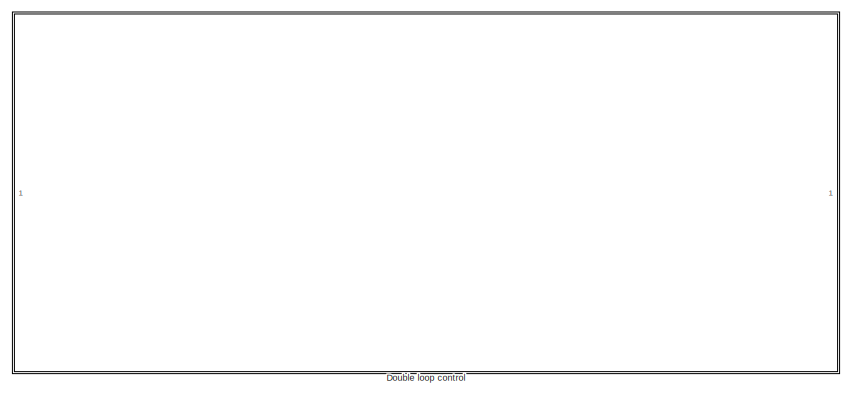
[diagram: root canvas - part 1/2, left side, full height]
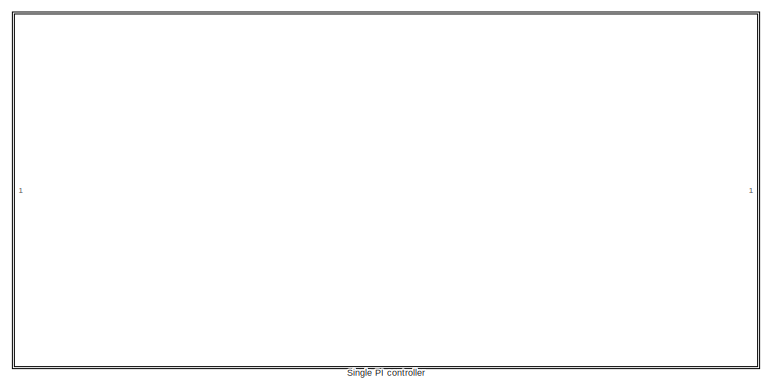
[diagram: root canvas - part 2/2, right side, full height]
MODEL slx_eeb159517b94
KIND model
CONFIG AbsTol = 1e-3
CONFIG EnableMultiTasking = on
CONFIG FixedStep = auto
CONFIG MaxStep = auto
CONFIG MinStep = auto
CONFIG RelTol = 1e-3
CONFIG SampleTimeConstraint = Unconstrained
CONFIG SolverName = VariableStepAuto
CONFIG StartTime = 0.0
CONFIG StopTime = 50
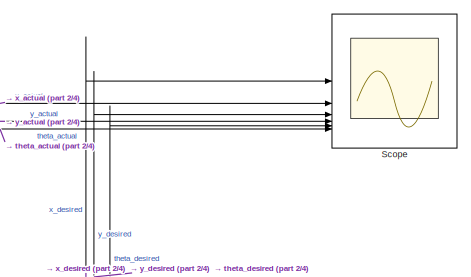
[diagram: Double loop control - part 1/4, top center region]
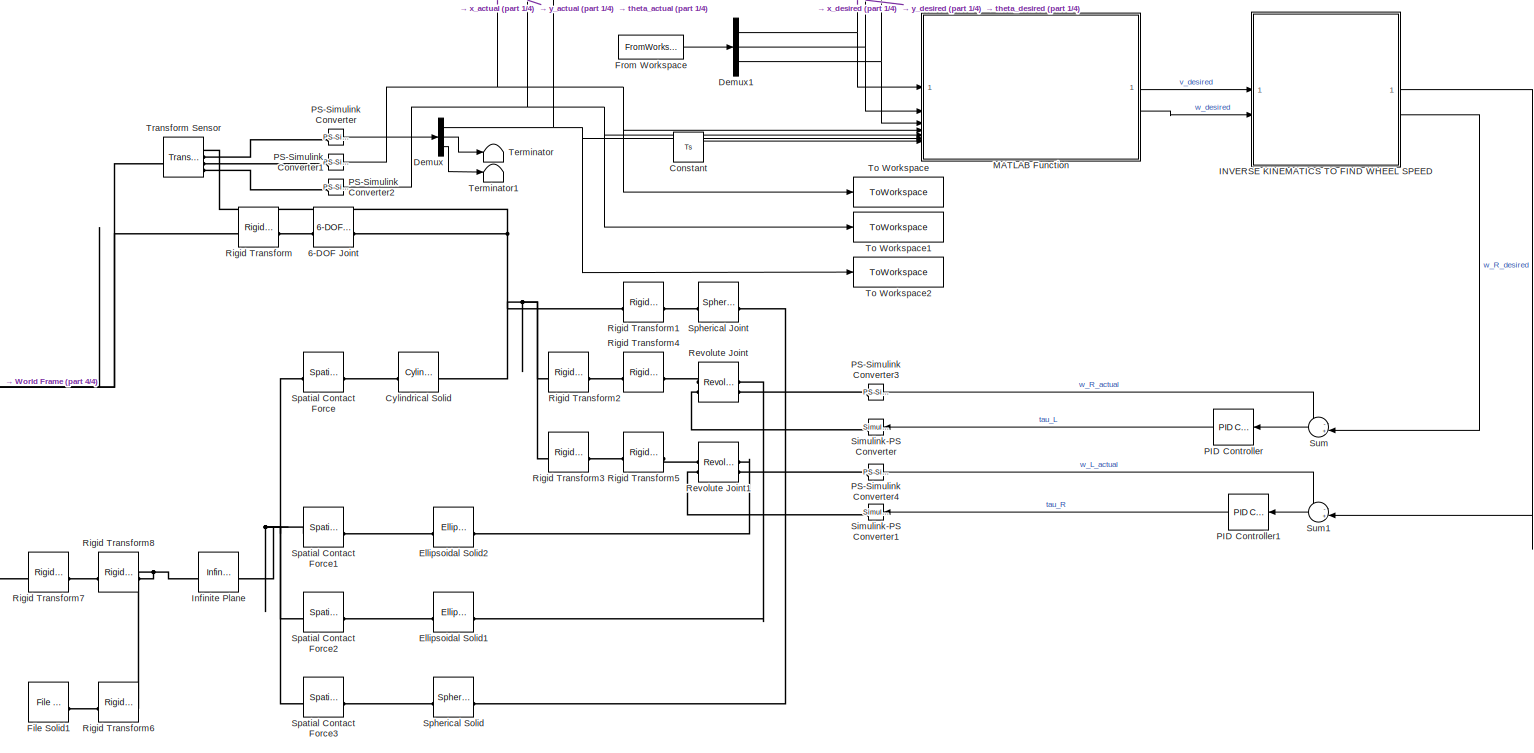
[diagram: Double loop control - part 2/4, full width, middle band]
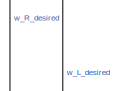
[diagram: Double loop control - part 3/4, middle right region]
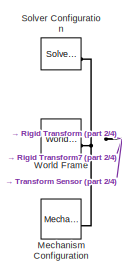
[diagram: Double loop control - part 4/4, bottom left region]
BLOCK [SubSystem] Double loop control
BLOCK [Reference] Double loop control/6-DOF Joint  REF=sm_lib/Joints/6-DOF Joint
  SourceBlock = sm_lib/Joints/6-DOF Joint
  SourceType = 6-DOF Joint
BLOCK [Constant] Double loop control/Constant
  Value = Ts
BLOCK [Reference] Double loop control/Cylindrical Solid  REF=sm_lib/Body Elements/Cylindrical Solid
  SourceBlock = sm_lib/Body Elements/Cylindrical Solid
  SourceType = Cylindrical Solid
BLOCK [Demux] Double loop control/Demux
  Outputs = 3
BLOCK [Demux] Double loop control/Demux1
  Outputs = 3
BLOCK [Reference] Double loop control/Ellipsoidal Solid1  REF=sm_lib/Body Elements/Ellipsoidal Solid
  SourceBlock = sm_lib/Body Elements/Ellipsoidal Solid
  SourceType = Ellipsoidal Solid
BLOCK [Reference] Double loop control/Ellipsoidal Solid2  REF=sm_lib/Body Elements/Ellipsoidal Solid
  SourceBlock = sm_lib/Body Elements/Ellipsoidal Solid
  SourceType = Ellipsoidal Solid
BLOCK [Reference] Double loop control/File Solid1  REF=sm_lib/Body Elements/File Solid
  SourceBlock = sm_lib/Body Elements/File Solid
  SourceType = File Solid
BLOCK [FromWorkspace] Double loop control/From Workspace
  VariableName = simulink_path_data
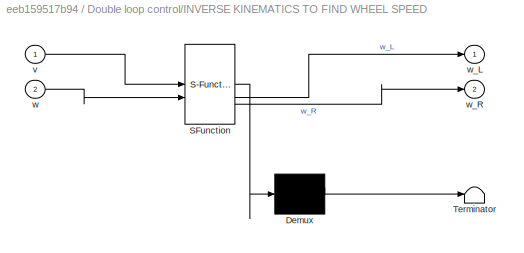
BLOCK [SubSystem] Double loop control/INVERSE KINEMATICS TO FIND WHEEL SPEED
  ErrorFcn = Stateflow.Translate.translate
  PermitHierarchicalResolution = ExplicitOnly
  SFBlockType = MATLAB Function
  TreatAsAtomicUnit = on
BLOCK [Demux] Double loop control/INVERSE KINEMATICS TO FIND WHEEL SPEED/ Demux 
  Outputs = 1
BLOCK [S-Function] Double loop control/INVERSE KINEMATICS TO FIND WHEEL SPEED/ SFunction 
  EnableBusSupport = on
  FunctionName = sf_sfun
  PortCounts = [2 3]
  SFcnIsStateOwnerBlock = off
  SFunctionDeploymentMode = off
  Tag = Stateflow S-Function 2
BLOCK [Terminator] Double loop control/INVERSE KINEMATICS TO FIND WHEEL SPEED/ Terminator 
BLOCK [Inport] Double loop control/INVERSE KINEMATICS TO FIND WHEEL SPEED/v
BLOCK [Inport] Double loop control/INVERSE KINEMATICS TO FIND WHEEL SPEED/w
  Port = 2
BLOCK [Outport] Double loop control/INVERSE KINEMATICS TO FIND WHEEL SPEED/w_L
BLOCK [Outport] Double loop control/INVERSE KINEMATICS TO FIND WHEEL SPEED/w_R
  Port = 2
BLOCK [Reference] Double loop control/Infinite Plane  REF=sm_lib/Curves and Surfaces/Infinite Plane
  SourceBlock = sm_lib/Curves and Surfaces/Infinite Plane
  SourceType = Infinite Plane
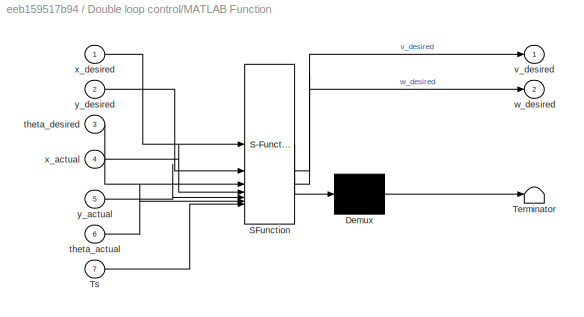
BLOCK [SubSystem] Double loop control/MATLAB Function
  ErrorFcn = Stateflow.Translate.translate
  PermitHierarchicalResolution = ExplicitOnly
  SFBlockType = MATLAB Function
  SystemSampleTime = Ts
  TreatAsAtomicUnit = on
BLOCK [Demux] Double loop control/MATLAB Function/ Demux 
  Outputs = 1
BLOCK [S-Function] Double loop control/MATLAB Function/ SFunction 
  EnableBusSupport = on
  FunctionName = sf_sfun
  PortCounts = [7 3]
  SFcnIsStateOwnerBlock = off
  SFunctionDeploymentMode = off
  Tag = Stateflow S-Function 1
BLOCK [Terminator] Double loop control/MATLAB Function/ Terminator 
BLOCK [Inport] Double loop control/MATLAB Function/Ts
  Port = 7
BLOCK [Inport] Double loop control/MATLAB Function/theta_actual
  Port = 6
BLOCK [Inport] Double loop control/MATLAB Function/theta_desired
  Port = 3
BLOCK [Outport] Double loop control/MATLAB Function/v_desired
BLOCK [Outport] Double loop control/MATLAB Function/w_desired
  Port = 2
BLOCK [Inport] Double loop control/MATLAB Function/x_actual
  Port = 4
BLOCK [Inport] Double loop control/MATLAB Function/x_desired
BLOCK [Inport] Double loop control/MATLAB Function/y_actual
  Port = 5
BLOCK [Inport] Double loop control/MATLAB Function/y_desired
  Port = 2
BLOCK [Reference] Double loop control/Mechanism Configuration  REF=sm_lib/Utilities/Mechanism
Configuration
  SourceBlock = sm_lib/Utilities/Mechanism\nConfiguration
  SourceType = Mechanism\nConfiguration
BLOCK [Reference] Double loop control/PID Controller  REF=slpidlib/PID Controller
  LibrarySourceBlock = simulink/Continuous/PID Controller
  NameLocation = top
  SourceBlock = slpidlib/PID Controller
  SourceType = PID 1dof
BLOCK [Reference] Double loop control/PID Controller1  REF=slpidlib/PID Controller
  LibrarySourceBlock = simulink/Continuous/PID Controller
  NameLocation = top
  SourceBlock = slpidlib/PID Controller
  SourceType = PID 1dof
BLOCK [Reference] Double loop control/PS-Simulink Converter  REF=nesl_utility/PS-Simulink
Converter
  SourceBlock = nesl_utility/PS-Simulink\nConverter
  SourceType = PS-Simulink\nConverter
BLOCK [Reference] Double loop control/PS-Simulink Converter1  REF=nesl_utility/PS-Simulink
Converter
  SourceBlock = nesl_utility/PS-Simulink\nConverter
  SourceType = PS-Simulink\nConverter
BLOCK [Reference] Double loop control/PS-Simulink Converter2  REF=nesl_utility/PS-Simulink
Converter
  SourceBlock = nesl_utility/PS-Simulink\nConverter
  SourceType = PS-Simulink\nConverter
BLOCK [Reference] Double loop control/PS-Simulink Converter3  REF=nesl_utility/PS-Simulink
Converter
  SourceBlock = nesl_utility/PS-Simulink\nConverter
  SourceType = PS-Simulink\nConverter
BLOCK [Reference] Double loop control/PS-Simulink Converter4  REF=nesl_utility/PS-Simulink
Converter
  SourceBlock = nesl_utility/PS-Simulink\nConverter
  SourceType = PS-Simulink\nConverter
BLOCK [Reference] Double loop control/Revolute Joint  REF=sm_lib/Joints/Revolute Joint
  SourceBlock = sm_lib/Joints/Revolute Joint
  SourceType = Revolute Joint
BLOCK [Reference] Double loop control/Revolute Joint1  REF=sm_lib/Joints/Revolute Joint
  SourceBlock = sm_lib/Joints/Revolute Joint
  SourceType = Revolute Joint
BLOCK [Reference] Double loop control/Rigid Transform  REF=sm_lib/Frames and
Transforms/Rigid
Transform
  SourceBlock = sm_lib/Frames and\nTransforms/Rigid\nTransform
  SourceType = Rigid\nTransform
BLOCK [Reference] Double loop control/Rigid Transform1  REF=sm_lib/Frames and
Transforms/Rigid
Transform
  SourceBlock = sm_lib/Frames and\nTransforms/Rigid\nTransform
  SourceType = Rigid\nTransform
BLOCK [Reference] Double loop control/Rigid Transform2  REF=sm_lib/Frames and
Transforms/Rigid
Transform
  SourceBlock = sm_lib/Frames and\nTransforms/Rigid\nTransform
  SourceType = Rigid\nTransform
BLOCK [Reference] Double loop control/Rigid Transform3  REF=sm_lib/Frames and
Transforms/Rigid
Transform
  SourceBlock = sm_lib/Frames and\nTransforms/Rigid\nTransform
  SourceType = Rigid\nTransform
BLOCK [Reference] Double loop control/Rigid Transform4  REF=sm_lib/Frames and
Transforms/Rigid
Transform
  SourceBlock = sm_lib/Frames and\nTransforms/Rigid\nTransform
  SourceType = Rigid\nTransform
BLOCK [Reference] Double loop control/Rigid Transform5  REF=sm_lib/Frames and
Transforms/Rigid
Transform
  SourceBlock = sm_lib/Frames and\nTransforms/Rigid\nTransform
  SourceType = Rigid\nTransform
BLOCK [Reference] Double loop control/Rigid Transform6  REF=sm_lib/Frames and
Transforms/Rigid
Transform
  SourceBlock = sm_lib/Frames and\nTransforms/Rigid\nTransform
  SourceType = Rigid\nTransform
BLOCK [Reference] Double loop control/Rigid Transform7  REF=sm_lib/Frames and
Transforms/Rigid
Transform
  SourceBlock = sm_lib/Frames and\nTransforms/Rigid\nTransform
  SourceType = Rigid\nTransform
BLOCK [Reference] Double loop control/Rigid Transform8  REF=sm_lib/Frames and
Transforms/Rigid
Transform
  SourceBlock = sm_lib/Frames and\nTransforms/Rigid\nTransform
  SourceType = Rigid\nTransform
BLOCK [Scope] Double loop control/Scope
  Floating = off
  NumInputPorts = 6
  ScopeSpecificationString = Simulink.scopes.TimeScopeBlockCfg('CurrentConfiguration', extmgr.ConfigurationSet(extmgr.Configuration('Core','General UI',true),extmgr.Configuration('Core','Source UI',true),extmgr.Configuration('Sources','WiredSimulink',true),extmgr.Configuration('Visuals','Time Domain',true,'SerializedDisplays',{struct('MinYLimReal','15.39043','MaxYLimReal','31.76354','YLabelReal','','MinYLimMag','15.39043','Ma...<+5325ch>
BLOCK [Reference] Double loop control/Simulink-PS Converter  REF=nesl_utility/Simulink-PS
Converter
  SourceBlock = nesl_utility/Simulink-PS\nConverter
  SourceType = Simulink-PS\nConverter
BLOCK [Reference] Double loop control/Simulink-PS Converter1  REF=nesl_utility/Simulink-PS
Converter
  SourceBlock = nesl_utility/Simulink-PS\nConverter
  SourceType = Simulink-PS\nConverter
BLOCK [Reference] Double loop control/Solver Configuration  REF=nesl_utility/Solver
Configuration
  SourceBlock = nesl_utility/Solver\nConfiguration
  SourceType = Solver\nConfiguration
BLOCK [Reference] Double loop control/Spatial Contact Force  REF=sm_lib/Forces and
Torques/Spatial
Contact Force
  SourceBlock = sm_lib/Forces and\nTorques/Spatial\nContact Force
  SourceType = Spatial\nContact Force
BLOCK [Reference] Double loop control/Spatial Contact Force1  REF=sm_lib/Forces and
Torques/Spatial
Contact Force
  SourceBlock = sm_lib/Forces and\nTorques/Spatial\nContact Force
  SourceType = Spatial\nContact Force
BLOCK [Reference] Double loop control/Spatial Contact Force2  REF=sm_lib/Forces and
Torques/Spatial
Contact Force
  SourceBlock = sm_lib/Forces and\nTorques/Spatial\nContact Force
  SourceType = Spatial\nContact Force
BLOCK [Reference] Double loop control/Spatial Contact Force3  REF=sm_lib/Forces and
Torques/Spatial
Contact Force
  SourceBlock = sm_lib/Forces and\nTorques/Spatial\nContact Force
  SourceType = Spatial\nContact Force
BLOCK [Reference] Double loop control/Spherical Joint  REF=sm_lib/Joints/Spherical
Joint
  SourceBlock = sm_lib/Joints/Spherical\nJoint
  SourceType = Spherical\nJoint
BLOCK [Reference] Double loop control/Spherical Solid  REF=sm_lib/Body Elements/Spherical Solid
  SourceBlock = sm_lib/Body Elements/Spherical Solid
  SourceType = Spherical Solid
BLOCK [Sum] Double loop control/Sum
  Inputs = -+|
  NameLocation = top
BLOCK [Sum] Double loop control/Sum1
  Inputs = -+|
  NameLocation = top
BLOCK [Terminator] Double loop control/Terminator
BLOCK [Terminator] Double loop control/Terminator1
BLOCK [ToWorkspace] Double loop control/To Workspace
  FixptAsFi = on
  MaxDataPoints = inf
  SampleTime = -1
  SaveFormat = Timeseries
  VariableName = x_actual
BLOCK [ToWorkspace] Double loop control/To Workspace1
  FixptAsFi = on
  MaxDataPoints = inf
  SampleTime = -1
  SaveFormat = Timeseries
  VariableName = y_actual
BLOCK [ToWorkspace] Double loop control/To Workspace2
  FixptAsFi = on
  MaxDataPoints = inf
  SampleTime = -1
  SaveFormat = Timeseries
  VariableName = theta_actual
BLOCK [Reference] Double loop control/Transform Sensor  REF=sm_lib/Frames and
Transforms/Transform
Sensor
  SourceBlock = sm_lib/Frames and\nTransforms/Transform\nSensor
  SourceType = Transform\nSensor
BLOCK [Reference] Double loop control/World Frame  REF=sm_lib/Frames and
Transforms/World Frame
  SourceBlock = sm_lib/Frames and\nTransforms/World Frame
  SourceType = World Frame
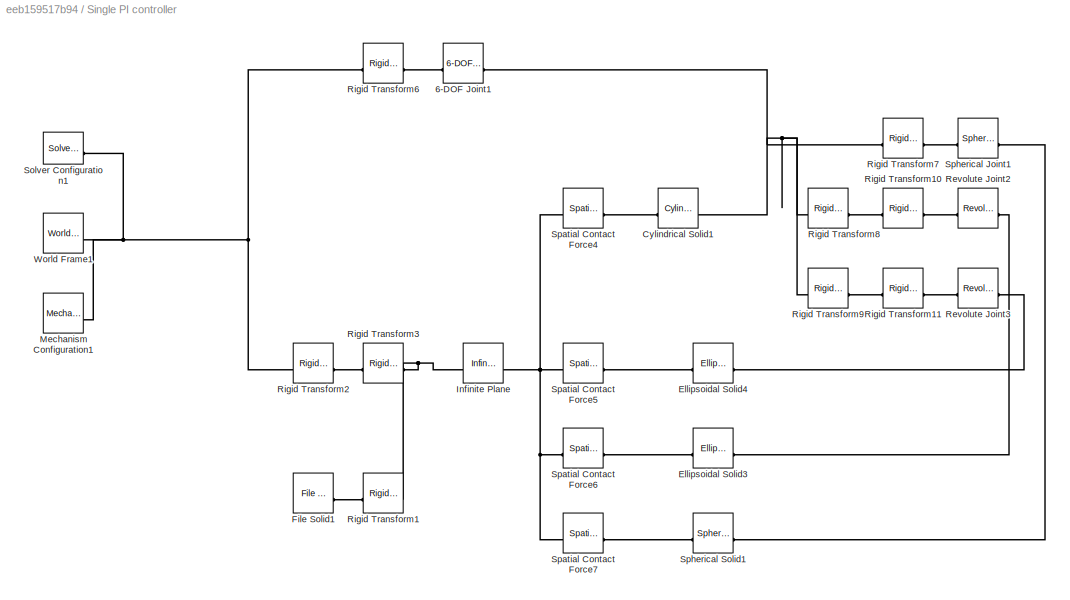
BLOCK [SubSystem] Single PI controller
  Commented = on
BLOCK [Reference] Single PI controller/6-DOF Joint1  REF=sm_lib/Joints/6-DOF Joint
  SourceBlock = sm_lib/Joints/6-DOF Joint
  SourceType = 6-DOF Joint
BLOCK [Reference] Single PI controller/Cylindrical Solid1  REF=sm_lib/Body Elements/Cylindrical Solid
  SourceBlock = sm_lib/Body Elements/Cylindrical Solid
  SourceType = Cylindrical Solid
BLOCK [Reference] Single PI controller/Ellipsoidal Solid3  REF=sm_lib/Body Elements/Ellipsoidal Solid
  SourceBlock = sm_lib/Body Elements/Ellipsoidal Solid
  SourceType = Ellipsoidal Solid
BLOCK [Reference] Single PI controller/Ellipsoidal Solid4  REF=sm_lib/Body Elements/Ellipsoidal Solid
  SourceBlock = sm_lib/Body Elements/Ellipsoidal Solid
  SourceType = Ellipsoidal Solid
BLOCK [Reference] Single PI controller/File Solid1  REF=sm_lib/Body Elements/File Solid
  SourceBlock = sm_lib/Body Elements/File Solid
  SourceType = File Solid
BLOCK [Reference] Single PI controller/Infinite Plane  REF=sm_lib/Curves and Surfaces/Infinite Plane
  SourceBlock = sm_lib/Curves and Surfaces/Infinite Plane
  SourceType = Infinite Plane
BLOCK [Reference] Single PI controller/Mechanism Configuration1  REF=sm_lib/Utilities/Mechanism
Configuration
  SourceBlock = sm_lib/Utilities/Mechanism\nConfiguration
  SourceType = Mechanism\nConfiguration
BLOCK [Reference] Single PI controller/Revolute Joint2  REF=sm_lib/Joints/Revolute Joint
  SourceBlock = sm_lib/Joints/Revolute Joint
  SourceType = Revolute Joint
BLOCK [Reference] Single PI controller/Revolute Joint3  REF=sm_lib/Joints/Revolute Joint
  SourceBlock = sm_lib/Joints/Revolute Joint
  SourceType = Revolute Joint
BLOCK [Reference] Single PI controller/Rigid Transform1  REF=sm_lib/Frames and
Transforms/Rigid
Transform
  SourceBlock = sm_lib/Frames and\nTransforms/Rigid\nTransform
  SourceType = Rigid\nTransform
BLOCK [Reference] Single PI controller/Rigid Transform10  REF=sm_lib/Frames and
Transforms/Rigid
Transform
  SourceBlock = sm_lib/Frames and\nTransforms/Rigid\nTransform
  SourceType = Rigid\nTransform
BLOCK [Reference] Single PI controller/Rigid Transform11  REF=sm_lib/Frames and
Transforms/Rigid
Transform
  SourceBlock = sm_lib/Frames and\nTransforms/Rigid\nTransform
  SourceType = Rigid\nTransform
BLOCK [Reference] Single PI controller/Rigid Transform2  REF=sm_lib/Frames and
Transforms/Rigid
Transform
  SourceBlock = sm_lib/Frames and\nTransforms/Rigid\nTransform
  SourceType = Rigid\nTransform
BLOCK [Reference] Single PI controller/Rigid Transform3  REF=sm_lib/Frames and
Transforms/Rigid
Transform
  SourceBlock = sm_lib/Frames and\nTransforms/Rigid\nTransform
  SourceType = Rigid\nTransform
BLOCK [Reference] Single PI controller/Rigid Transform6  REF=sm_lib/Frames and
Transforms/Rigid
Transform
  SourceBlock = sm_lib/Frames and\nTransforms/Rigid\nTransform
  SourceType = Rigid\nTransform
BLOCK [Reference] Single PI controller/Rigid Transform7  REF=sm_lib/Frames and
Transforms/Rigid
Transform
  SourceBlock = sm_lib/Frames and\nTransforms/Rigid\nTransform
  SourceType = Rigid\nTransform
BLOCK [Reference] Single PI controller/Rigid Transform8  REF=sm_lib/Frames and
Transforms/Rigid
Transform
  SourceBlock = sm_lib/Frames and\nTransforms/Rigid\nTransform
  SourceType = Rigid\nTransform
BLOCK [Reference] Single PI controller/Rigid Transform9  REF=sm_lib/Frames and
Transforms/Rigid
Transform
  SourceBlock = sm_lib/Frames and\nTransforms/Rigid\nTransform
  SourceType = Rigid\nTransform
BLOCK [Reference] Single PI controller/Solver Configuration1  REF=nesl_utility/Solver
Configuration
  SourceBlock = nesl_utility/Solver\nConfiguration
  SourceType = Solver\nConfiguration
BLOCK [Reference] Single PI controller/Spatial Contact Force4  REF=sm_lib/Forces and
Torques/Spatial
Contact Force
  SourceBlock = sm_lib/Forces and\nTorques/Spatial\nContact Force
  SourceType = Spatial\nContact Force
BLOCK [Reference] Single PI controller/Spatial Contact Force5  REF=sm_lib/Forces and
Torques/Spatial
Contact Force
  SourceBlock = sm_lib/Forces and\nTorques/Spatial\nContact Force
  SourceType = Spatial\nContact Force
BLOCK [Reference] Single PI controller/Spatial Contact Force6  REF=sm_lib/Forces and
Torques/Spatial
Contact Force
  SourceBlock = sm_lib/Forces and\nTorques/Spatial\nContact Force
  SourceType = Spatial\nContact Force
BLOCK [Reference] Single PI controller/Spatial Contact Force7  REF=sm_lib/Forces and
Torques/Spatial
Contact Force
  SourceBlock = sm_lib/Forces and\nTorques/Spatial\nContact Force
  SourceType = Spatial\nContact Force
BLOCK [Reference] Single PI controller/Spherical Joint1  REF=sm_lib/Joints/Spherical
Joint
  SourceBlock = sm_lib/Joints/Spherical\nJoint
  SourceType = Spherical\nJoint
BLOCK [Reference] Single PI controller/Spherical Solid1  REF=sm_lib/Body Elements/Spherical Solid
  SourceBlock = sm_lib/Body Elements/Spherical Solid
  SourceType = Spherical Solid
BLOCK [Reference] Single PI controller/World Frame1  REF=sm_lib/Frames and
Transforms/World Frame
  SourceBlock = sm_lib/Frames and\nTransforms/World Frame
  SourceType = World Frame
LINE Double loop control/Constant:1 -> Double loop control/MATLAB Function:7
NET Double loop control/Demux1:1 -> Double loop control/MATLAB Function:1, Double loop control/Scope:1
NET Double loop control/Demux1:2 -> Double loop control/MATLAB Function:2, Double loop control/Scope:3
NET Double loop control/Demux1:3 -> Double loop control/MATLAB Function:3, Double loop control/Scope:5
NET Double loop control/Demux:1 -> Double loop control/MATLAB Function:6, Double loop control/Scope:6, Double loop control/To Workspace2:1
LINE Double loop control/Demux:2 -> Double loop control/Terminator:1
LINE Double loop control/Demux:3 -> Double loop control/Terminator1:1
LINE Double loop control/From Workspace:1 -> Double loop control/Demux1:1
LINE Double loop control/INVERSE KINEMATICS TO FIND WHEEL SPEED:1 -> Double loop control/Sum1:2
LINE Double loop control/INVERSE KINEMATICS TO FIND WHEEL SPEED:2 -> Double loop control/Sum:2
LINE Double loop control/MATLAB Function:1 -> Double loop control/INVERSE KINEMATICS TO FIND WHEEL SPEED:1
LINE Double loop control/MATLAB Function:2 -> Double loop control/INVERSE KINEMATICS TO FIND WHEEL SPEED:2
LINE Double loop control/PID Controller1:1 -> Double loop control/Simulink-PS Converter1:1
LINE Double loop control/PID Controller:1 -> Double loop control/Simulink-PS Converter:1
NET Double loop control/PS-Simulink Converter1:1 -> Double loop control/MATLAB Function:4, Double loop control/Scope:2, Double loop control/To Workspace:1
NET Double loop control/PS-Simulink Converter2:1 -> Double loop control/MATLAB Function:5, Double loop control/Scope:4, Double loop control/To Workspace1:1
LINE Double loop control/PS-Simulink Converter3:1 -> Double loop control/Sum:1
LINE Double loop control/PS-Simulink Converter4:1 -> Double loop control/Sum1:1
LINE Double loop control/PS-Simulink Converter:1 -> Double loop control/Demux:1
LINE Double loop control/Sum1:1 -> Double loop control/PID Controller1:1
LINE Double loop control/Sum:1 -> Double loop control/PID Controller:1
PLINE Double loop control/6-DOF Joint:LConn1 -- Double loop control/Rigid Transform:RConn1
PNET net1: Double loop control/6-DOF Joint:RConn1 -- Double loop control/Cylindrical Solid:RConn1 -- Double loop control/Rigid Transform1:LConn1 -- Double loop control/Rigid Transform2:LConn1 -- Double loop control/Rigid Transform3:LConn1 -- Double loop control/Transform Sensor:RConn1
PLINE Double loop control/Cylindrical Solid:LConn1 -- Double loop control/Spatial Contact Force:RConn1
PLINE Double loop control/Ellipsoidal Solid1:LConn1 -- Double loop control/Spatial Contact Force2:RConn1
PLINE Double loop control/Ellipsoidal Solid1:RConn1 -- Double loop control/Revolute Joint:RConn1
PLINE Double loop control/Ellipsoidal Solid2:LConn1 -- Double loop control/Spatial Contact Force1:RConn1
PLINE Double loop control/Ellipsoidal Solid2:RConn1 -- Double loop control/Revolute Joint1:RConn1
PLINE Double loop control/File Solid1:RConn1 -- Double loop control/Rigid Transform6:LConn1
PNET net2: Double loop control/Infinite Plane:LConn1 -- Double loop control/Rigid Transform6:RConn1 -- Double loop control/Rigid Transform8:RConn1
PNET net3: Double loop control/Infinite Plane:RConn1 -- Double loop control/Spatial Contact Force1:LConn1 -- Double loop control/Spatial Contact Force2:LConn1 -- Double loop control/Spatial Contact Force3:LConn1 -- Double loop control/Spatial Contact Force:LConn1
PNET net4: Double loop control/Mechanism Configuration:RConn1 -- Double loop control/Rigid Transform7:LConn1 -- Double loop control/Rigid Transform:LConn1 -- Double loop control/Solver Configuration:RConn1 -- Double loop control/Transform Sensor:LConn1 -- Double loop control/World Frame:RConn1
PLINE Double loop control/PS-Simulink Converter1:LConn1 -- Double loop control/Transform Sensor:RConn3
PLINE Double loop control/PS-Simulink Converter2:LConn1 -- Double loop control/Transform Sensor:RConn4
PLINE Double loop control/PS-Simulink Converter3:LConn1 -- Double loop control/Revolute Joint:RConn2
PLINE Double loop control/PS-Simulink Converter4:LConn1 -- Double loop control/Revolute Joint1:RConn2
PLINE Double loop control/PS-Simulink Converter:LConn1 -- Double loop control/Transform Sensor:RConn2
PLINE Double loop control/Revolute Joint1:LConn1 -- Double loop control/Rigid Transform5:RConn1
PLINE Double loop control/Revolute Joint1:LConn2 -- Double loop control/Simulink-PS Converter1:RConn1
PLINE Double loop control/Revolute Joint:LConn1 -- Double loop control/Rigid Transform4:RConn1
PLINE Double loop control/Revolute Joint:LConn2 -- Double loop control/Simulink-PS Converter:RConn1
PLINE Double loop control/Rigid Transform1:RConn1 -- Double loop control/Spherical Joint:LConn1
PLINE Double loop control/Rigid Transform2:RConn1 -- Double loop control/Rigid Transform4:LConn1
PLINE Double loop control/Rigid Transform3:RConn1 -- Double loop control/Rigid Transform5:LConn1
PLINE Double loop control/Rigid Transform7:RConn1 -- Double loop control/Rigid Transform8:LConn1
PLINE Double loop control/Spatial Contact Force3:RConn1 -- Double loop control/Spherical Solid:LConn1
PLINE Double loop control/Spherical Joint:RConn1 -- Double loop control/Spherical Solid:RConn1
PLINE Single PI controller/6-DOF Joint1:LConn1 -- Single PI controller/Rigid Transform6:RConn1
PNET net5: Single PI controller/6-DOF Joint1:RConn1 -- Single PI controller/Cylindrical Solid1:RConn1 -- Single PI controller/Rigid Transform7:LConn1 -- Single PI controller/Rigid Transform8:LConn1 -- Single PI controller/Rigid Transform9:LConn1
PLINE Single PI controller/Cylindrical Solid1:LConn1 -- Single PI controller/Spatial Contact Force4:RConn1
PLINE Single PI controller/Ellipsoidal Solid3:LConn1 -- Single PI controller/Spatial Contact Force6:RConn1
PLINE Single PI controller/Ellipsoidal Solid3:RConn1 -- Single PI controller/Revolute Joint2:RConn1
PLINE Single PI controller/Ellipsoidal Solid4:LConn1 -- Single PI controller/Spatial Contact Force5:RConn1
PLINE Single PI controller/Ellipsoidal Solid4:RConn1 -- Single PI controller/Revolute Joint3:RConn1
PLINE Single PI controller/File Solid1:RConn1 -- Single PI controller/Rigid Transform1:LConn1
PNET net6: Single PI controller/Infinite Plane:LConn1 -- Single PI controller/Rigid Transform1:RConn1 -- Single PI controller/Rigid Transform3:RConn1
PNET net7: Single PI controller/Infinite Plane:RConn1 -- Single PI controller/Spatial Contact Force4:LConn1 -- Single PI controller/Spatial Contact Force5:LConn1 -- Single PI controller/Spatial Contact Force6:LConn1 -- Single PI controller/Spatial Contact Force7:LConn1
PNET net8: Single PI controller/Mechanism Configuration1:RConn1 -- Single PI controller/Rigid Transform2:LConn1 -- Single PI controller/Rigid Transform6:LConn1 -- Single PI controller/Solver Configuration1:RConn1 -- Single PI controller/World Frame1:RConn1
PLINE Single PI controller/Revolute Joint2:LConn1 -- Single PI controller/Rigid Transform10:RConn1
PLINE Single PI controller/Revolute Joint3:LConn1 -- Single PI controller/Rigid Transform11:RConn1
PLINE Single PI controller/Rigid Transform10:LConn1 -- Single PI controller/Rigid Transform8:RConn1
PLINE Single PI controller/Rigid Transform11:LConn1 -- Single PI controller/Rigid Transform9:RConn1
PLINE Single PI controller/Rigid Transform2:RConn1 -- Single PI controller/Rigid Transform3:LConn1
PLINE Single PI controller/Rigid Transform7:RConn1 -- Single PI controller/Spherical Joint1:LConn1
PLINE Single PI controller/Spatial Contact Force7:RConn1 -- Single PI controller/Spherical Solid1:LConn1
PLINE Single PI controller/Spherical Joint1:RConn1 -- Single PI controller/Spherical Solid1:RConn1
note: NET lines group one-source signal fan-out (src -> all destinations, sorted); 1:1 wires keep LINE; PNET lines group multi-terminal physical nets as a canonical sorted terminal list (undirected conserving connections); 2-terminal nets keep the pairwise PLINE form
CHART Double loop control/MATLAB Function states=1 transitions=1
  STATE_LABEL 'eML_blk_kernel()'
  STATE_LABEL 'SCRIPT:\n% This function implements a robust, COUPLED kinematic controller.\n% It is a PI/PI controller (high-level) designed for a \n% kinematic model (no low-level controllers).\n%\nfunction [v_desired, w_desired] = cinematic_controller(x_desired, y_desired, theta_desired, x_actual, y_actual, theta_actual, Ts)\n    \n    % --- Store the integral terms ---\n    persistent integral_err_v;\n    persistent i...<+1840ch>'
CHART Double loop control/INVERSE KINEMATICS 
TO FIND WHEEL SPEED states=1 transitions=1
  STATE_LABEL 'eML_blk_kernel()'
  STATE_LABEL 'SCRIPT:\nfunction [w_L, w_R] = fcn(v, w)\n% Questo blocco calcola la cinematica inversa di un robot\n% a guida differenziale (differential drive).\n\nL = 0.14;  % Interasse: distanza TRA le due ruote (in metri)\nR = 0.02;  % Raggio: il raggio DI UNA ruota (in metri)\n% ------------------------------------\n\n\n% Calcola la velocità lineare per ciascuna ruota\nv_R = v - (w * L) / 2; % Velocità ruota destra\nv_...<+142ch>'
CHART  states=0 transitions=0
CHART  states=0 transitions=0
